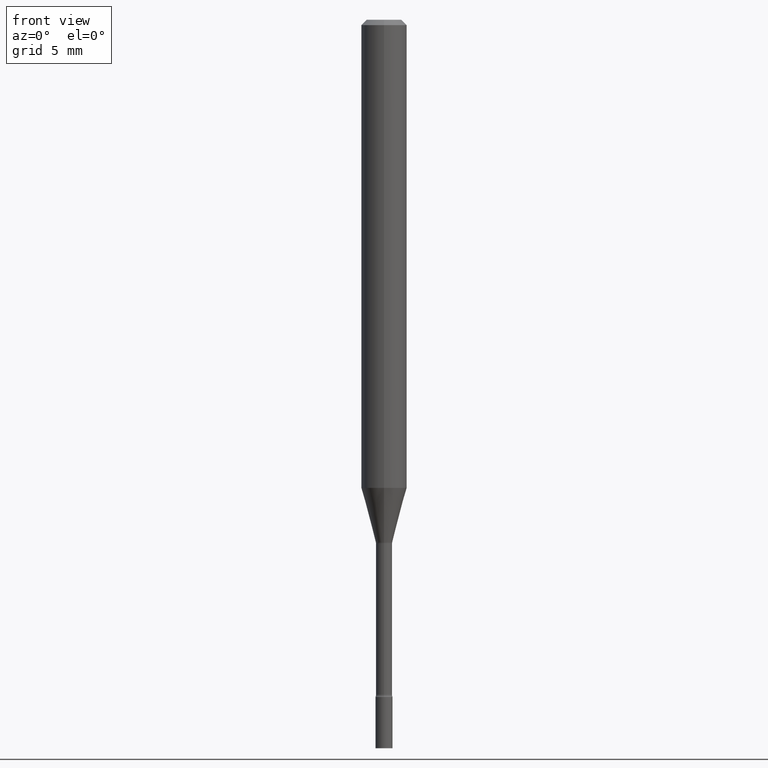
[diagram: clean part render]
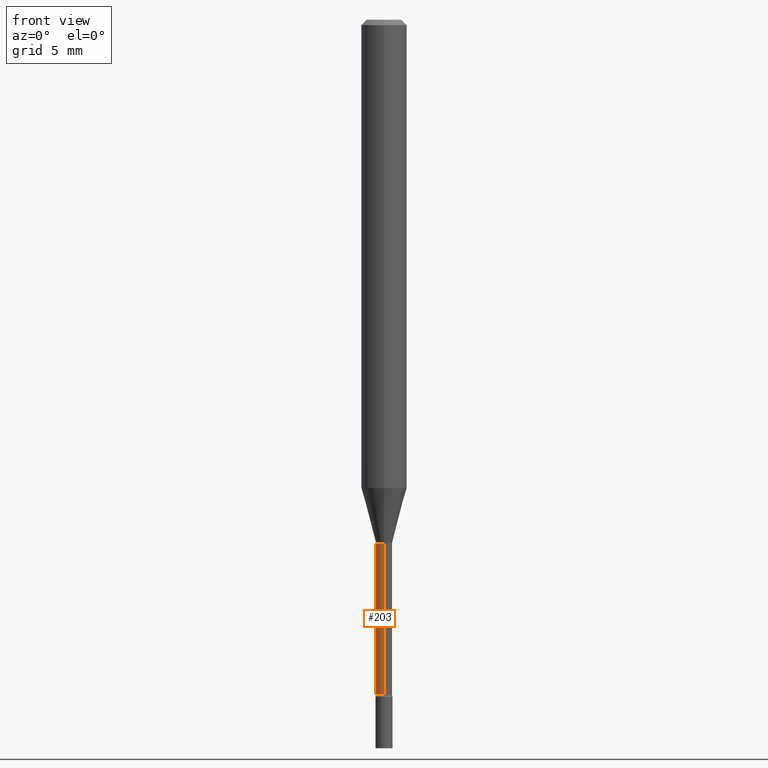
[diagram: same view with one face highlighted and labeled with its STEP entity id]
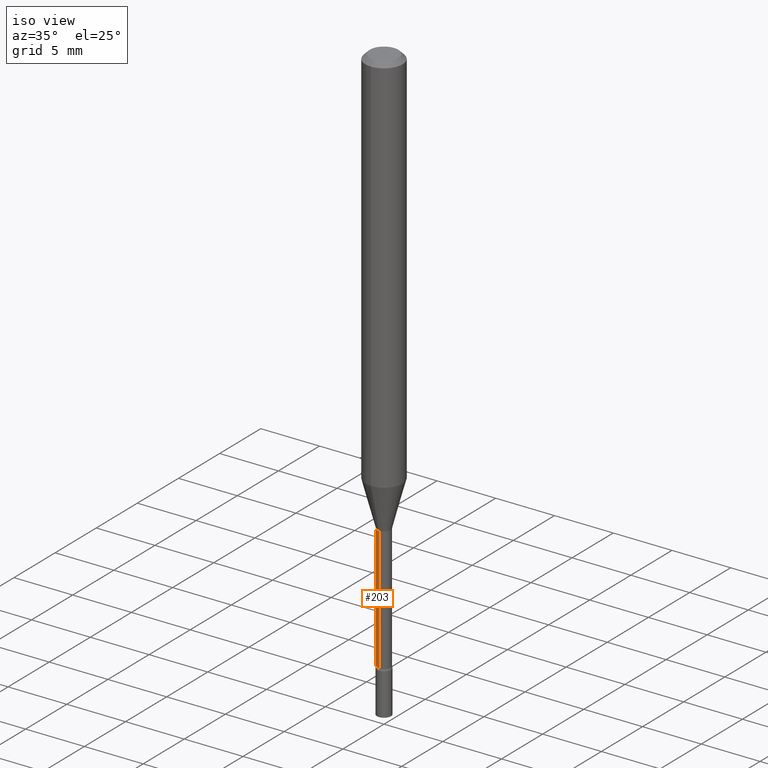
[diagram: same view with one face highlighted and labeled with its STEP entity id]
A machine part, front view. The second image highlights one B-rep face of the part: STEP entity #203.
A second angle (iso view) of the same face is appended — the face is thin or edge-on in the first view.
In plain terms, the highlighted cylindrical surface (edge-blend (fillet) strip) has radius 0.5613 mm, axis along (-0, 0, 1).
Its self-contained STEP definition (entity closure, byte-faithful):
#39 = ORIENTED_EDGE ( 'NONE', *, *, #392, .F. ) ;
#42 = CARTESIAN_POINT ( 'NONE',  ( 4.530606056085395644E-29, -6.468636894208376404E-15, -1.852672283192177582 ) ) ;
#70 = ORIENTED_EDGE ( 'NONE', *, *, #97, .T. ) ;
#97 = EDGE_CURVE ( 'NONE', #105, #403, #362, .T. ) ;
#98 = CYLINDRICAL_SURFACE ( 'NONE', #456, 0.02210000000000002587 ) ;
#99 = CARTESIAN_POINT ( 'NONE',  ( 0.000000000000000000, 0.000000000000000000, 0.000000000000000000 ) ) ;
#105 = VERTEX_POINT ( 'NONE', #123 ) ;
#106 = EDGE_CURVE ( 'NONE', #105, #169, #284, .T. ) ;
#123 = CARTESIAN_POINT ( 'NONE',  ( 1.620037437533484049E-16, 0.02209999999999359352, -1.852672283192177582 ) ) ;
#133 = DIRECTION ( 'NONE',  ( -2.445443858143710310E-29, 3.491517065858421989E-15, 1.000000000000000000 ) ) ;
#134 = EDGE_CURVE ( 'NONE', #403, #340, #289, .T. ) ;
#139 = CARTESIAN_POINT ( 'NONE',  ( -1.543234751768666594E-16, -0.02210000000000002587, 7.716252715547121836E-17 ) ) ;
#140 = CARTESIAN_POINT ( 'NONE',  ( 3.516486612168884789E-29, -5.020713510704033557E-15, -1.437974787463811133 ) ) ;
#148 = CARTESIAN_POINT ( 'NONE',  ( -1.543234751768312592E-16, -0.02210000000000501147, -1.437974787463811133 ) ) ;
#149 = AXIS2_PLACEMENT_3D ( 'NONE', #42, #309, #479 ) ;
#154 = DIRECTION ( 'NONE',  ( -6.982962677686265922E-15, -1.000000000000000000, 3.491517065858421989E-15 ) ) ;
#169 = VERTEX_POINT ( 'NONE', #261 ) ;
#195 = VECTOR ( 'NONE', #293, 39.37007874015748143 ) ;
#203 = ADVANCED_FACE ( 'NONE', ( #471 ), #98, .T. ) ;
#210 = VECTOR ( 'NONE', #501, 39.37007874015748143 ) ;
#257 = AXIS2_PLACEMENT_3D ( 'NONE', #140, #133, #411 ) ;
#261 = CARTESIAN_POINT ( 'NONE',  ( 1.570299446030275858E-16, 0.02209999999999497436, -1.437974787463811133 ) ) ;
#284 = LINE ( 'NONE', #333, #210 ) ;
#289 = LINE ( 'NONE', #139, #195 ) ;
#293 = DIRECTION ( 'NONE',  ( -2.445443858143710310E-29, 3.491517065858421989E-15, 1.000000000000000000 ) ) ;
#309 = DIRECTION ( 'NONE',  ( -2.445443858143710310E-29, 3.491517065858421989E-15, 1.000000000000000000 ) ) ;
#319 = ORIENTED_EDGE ( 'NONE', *, *, #106, .F. ) ;
#333 = CARTESIAN_POINT ( 'NONE',  ( 1.570299446029823003E-16, 0.02210000000000002587, -7.716252715547121836E-17 ) ) ;
#340 = VERTEX_POINT ( 'NONE', #148 ) ;
#351 = DIRECTION ( 'NONE',  ( -2.445443858143710310E-29, 3.491517065858421989E-15, 1.000000000000000000 ) ) ;
#362 = CIRCLE ( 'NONE', #149, 0.02210000000000006057 ) ;
#381 = CARTESIAN_POINT ( 'NONE',  ( -1.543234751768215957E-16, -0.02210000000000652762, -1.852672283192177582 ) ) ;
#392 = EDGE_CURVE ( 'NONE', #169, #340, #447, .T. ) ;
#403 = VERTEX_POINT ( 'NONE', #381 ) ;
#411 = DIRECTION ( 'NONE',  ( -6.982962677686265922E-15, -1.000000000000000000, 0.000000000000000000 ) ) ;
#447 = CIRCLE ( 'NONE', #257, 0.02209999999999999118 ) ;
#456 = AXIS2_PLACEMENT_3D ( 'NONE', #99, #351, #154 ) ;
#471 = FACE_OUTER_BOUND ( 'NONE', #484, .T. ) ;
#479 = DIRECTION ( 'NONE',  ( -6.982962677686265922E-15, -1.000000000000000000, 0.000000000000000000 ) ) ;
#484 = EDGE_LOOP ( 'NONE', ( #319, #70, #499, #39 ) ) ;
#499 = ORIENTED_EDGE ( 'NONE', *, *, #134, .T. ) ;
#501 = DIRECTION ( 'NONE',  ( -2.445443858143710310E-29, 3.491517065858421989E-15, 1.000000000000000000 ) ) ;